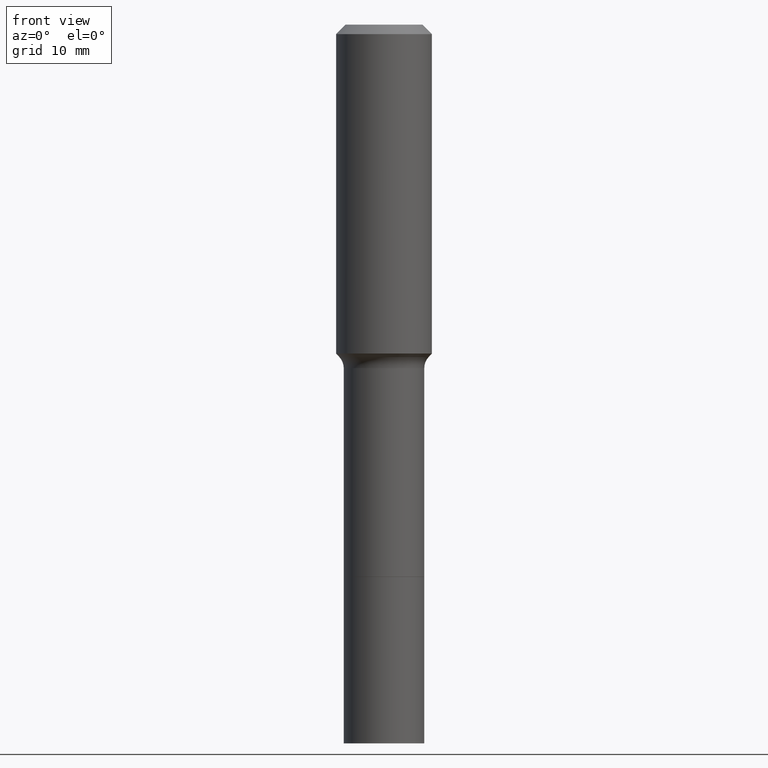
[diagram: clean part render]
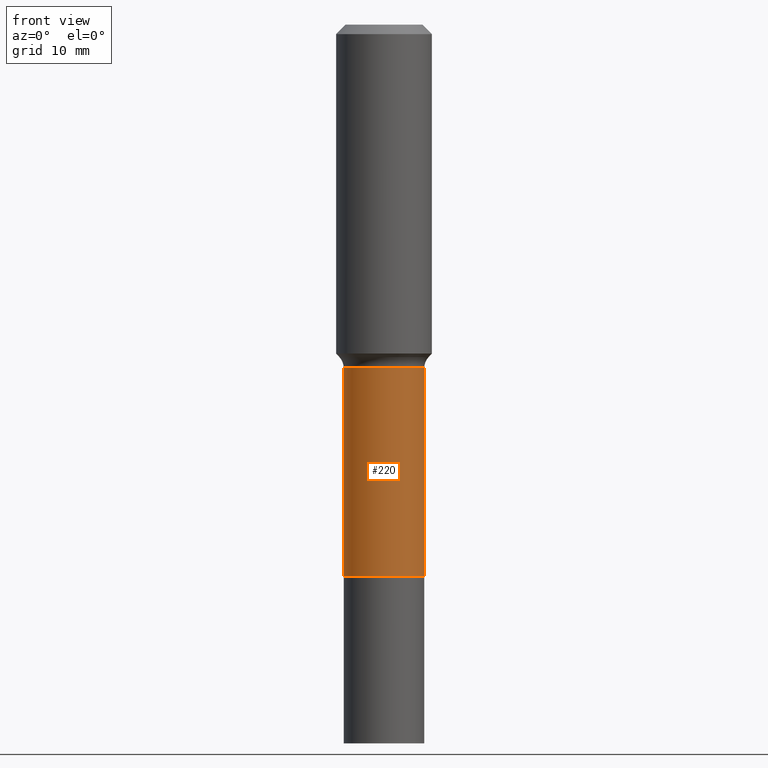
[diagram: same view with one face highlighted and labeled with its STEP entity id]
A machine part, front view. The second image highlights one B-rep face of the part: STEP entity #220.
In plain terms, the highlighted cylindrical surface (partial cylindrical patch) has radius 5.0419 mm, axis along (-0, 0, 1).
Its self-contained STEP definition (entity closure, byte-faithful):
#1 = CARTESIAN_POINT ( 'NONE',  ( 6.656076996674703521E-29, -9.503113908063272325E-15, -2.721799999999999553 ) ) ;
#4 = LINE ( 'NONE', #354, #144 ) ;
#5 = EDGE_CURVE ( 'NONE', #15, #183, #219, .T. ) ;
#14 = VERTEX_POINT ( 'NONE', #442 ) ;
#15 = VERTEX_POINT ( 'NONE', #174 ) ;
#47 = ORIENTED_EDGE ( 'NONE', *, *, #500, .F. ) ;
#51 = DIRECTION ( 'NONE',  ( 1.000000000000000000, -6.982962677686268288E-15, 0.000000000000000000 ) ) ;
#83 = DIRECTION ( 'NONE',  ( 1.000000000000000000, -6.982962677686265133E-15, 0.000000000000000000 ) ) ;
#93 = ORIENTED_EDGE ( 'NONE', *, *, #199, .F. ) ;
#108 = CYLINDRICAL_SURFACE ( 'NONE', #395, 0.1985000000000000098 ) ;
#109 = EDGE_CURVE ( 'NONE', #121, #15, #513, .T. ) ;
#113 = DIRECTION ( 'NONE',  ( 1.000000000000000000, -6.982962677686265922E-15, 4.876176775795935793E-29 ) ) ;
#121 = VERTEX_POINT ( 'NONE', #449 ) ;
#125 = CARTESIAN_POINT ( 'NONE',  ( 4.140912329513291253E-29, -5.912125351063097489E-15, -1.693299999999999583 ) ) ;
#130 = DIRECTION ( 'NONE',  ( -2.445468806185136597E-29, 3.491481338843145583E-15, 1.000000000000000000 ) ) ;
#144 = VECTOR ( 'NONE', #287, 39.37007874015748143 ) ;
#174 = CARTESIAN_POINT ( 'NONE',  ( 0.1985000000000000930, -1.088923199958399665E-14, -2.721799999999999553 ) ) ;
#183 = VERTEX_POINT ( 'NONE', #473 ) ;
#193 = ORIENTED_EDGE ( 'NONE', *, *, #5, .T. ) ;
#199 = EDGE_CURVE ( 'NONE', #121, #14, #4, .T. ) ;
#219 = LINE ( 'NONE', #411, #410 ) ;
#220 = ADVANCED_FACE ( 'NONE', ( #379 ), #108, .T. ) ;
#258 = DIRECTION ( 'NONE',  ( -2.445468806185136877E-29, 3.491481338843145188E-15, 1.000000000000000000 ) ) ;
#287 = DIRECTION ( 'NONE',  ( -2.445468806185136877E-29, 3.491481338843145188E-15, 1.000000000000000000 ) ) ;
#354 = CARTESIAN_POINT ( 'NONE',  ( -0.1985000000000000098, 1.410427330483798938E-15, -9.764086154155988574E-30 ) ) ;
#364 = DIRECTION ( 'NONE',  ( -2.445468806185136597E-29, 3.491481338843145583E-15, 1.000000000000000000 ) ) ;
#379 = FACE_OUTER_BOUND ( 'NONE', #489, .T. ) ;
#383 = DIRECTION ( 'NONE',  ( -2.445468806185136597E-29, 3.491481338843145583E-15, 1.000000000000000000 ) ) ;
#395 = AXIS2_PLACEMENT_3D ( 'NONE', #420, #383, #113 ) ;
#410 = VECTOR ( 'NONE', #258, 39.37007874015748143 ) ;
#411 = CARTESIAN_POINT ( 'NONE',  ( 0.1985000000000000098, -1.386118091520723926E-15, 9.679210899954933278E-30 ) ) ;
#420 = CARTESIAN_POINT ( 'NONE',  ( 0.000000000000000000, 0.000000000000000000, 0.000000000000000000 ) ) ;
#430 = ORIENTED_EDGE ( 'NONE', *, *, #109, .T. ) ;
#442 = CARTESIAN_POINT ( 'NONE',  ( -0.1984999999999998987, -6.297192299079385574E-15, -1.693299999999999583 ) ) ;
#449 = CARTESIAN_POINT ( 'NONE',  ( -0.1985000000000001208, -6.297192299079384785E-15, -2.721799999999999553 ) ) ;
#459 = AXIS2_PLACEMENT_3D ( 'NONE', #1, #364, #51 ) ;
#473 = CARTESIAN_POINT ( 'NONE',  ( 0.1984999999999998987, -7.298243442583821021E-15, -1.693299999999999583 ) ) ;
#489 = EDGE_LOOP ( 'NONE', ( #93, #430, #193, #47 ) ) ;
#492 = CIRCLE ( 'NONE', #517, 0.1984999999999998987 ) ;
#500 = EDGE_CURVE ( 'NONE', #14, #183, #492, .T. ) ;
#513 = CIRCLE ( 'NONE', #459, 0.1985000000000000930 ) ;
#517 = AXIS2_PLACEMENT_3D ( 'NONE', #125, #130, #83 ) ;